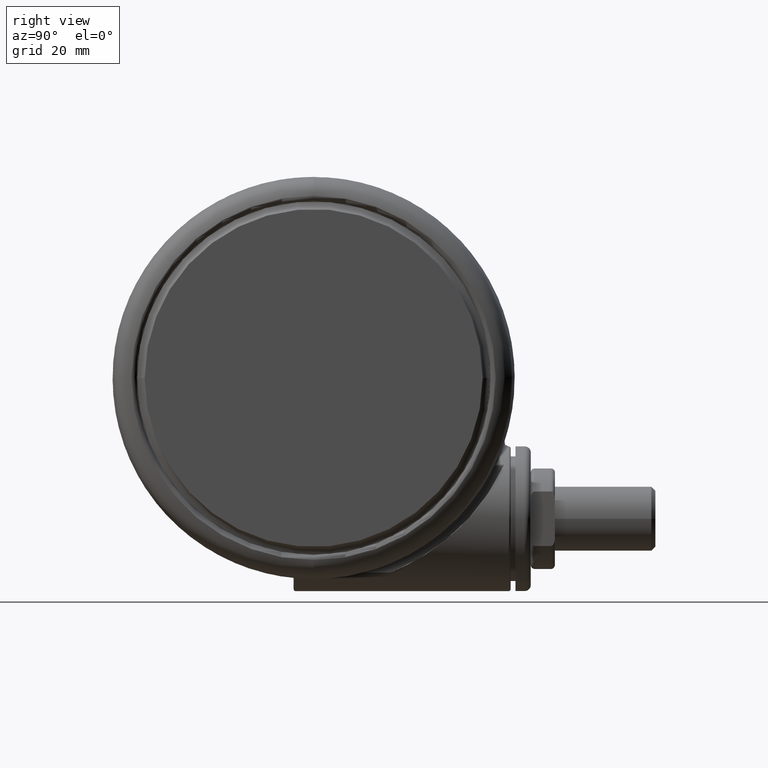
[diagram: clean part render]
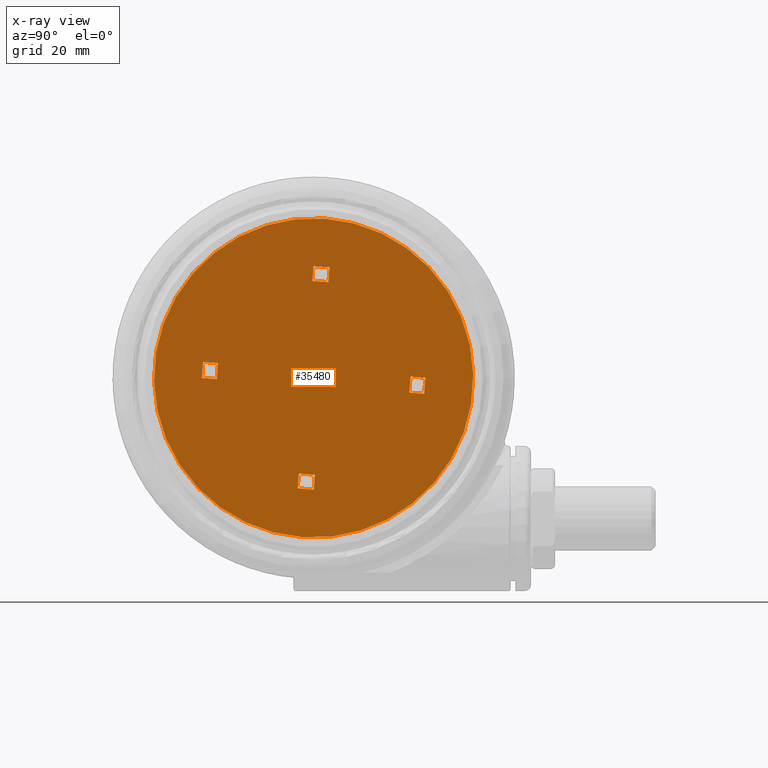
[diagram: x-ray — body ghosted, one internal face saturated and labeled with its STEP entity id]
A machine part, right view, then the same camera in x-ray: the body is ghosted and one INTERNAL B-rep face — a face not visible from any outside direction — is saturated and labeled: STEP entity #35480.
In plain terms, the highlighted planar face has unit normal (-1, 0, 0).
Its self-contained STEP definition (entity closure, byte-faithful):
#584 = FACE_BOUND ( 'NONE', #26364, .T. ) ;
#2398 = CARTESIAN_POINT ( 'NONE',  ( 27.49003547702652400, -3.948170439701663300, -63.39999999999995600 ) ) ;
#2595 = AXIS2_PLACEMENT_3D ( 'NONE', #76524, #40891, #5214 ) ;
#3108 = DIRECTION ( 'NONE',  ( 0.07051016129148821000, 0.9975110611690721800, 1.807003620809174600E-016 ) ) ;
#3343 = EDGE_CURVE ( 'NONE', #28112, #8440, #5698, .T. ) ;
#4098 = EDGE_LOOP ( 'NONE', ( #66324, #32962 ) ) ;
#4265 = EDGE_CURVE ( 'NONE', #49208, #15725, #28939, .T. ) ;
#4668 = LINE ( 'NONE', #47190, #50364 ) ;
#4781 = CARTESIAN_POINT ( 'NONE',  ( 3.687265398560212800, 23.79922829588536400, -63.39999999999995600 ) ) ;
#4909 = DIRECTION ( 'NONE',  ( 0.07051016129148471300, 0.9975110611690724000, 0.0000000000000000000 ) ) ;
#5214 = DIRECTION ( 'NONE',  ( 0.07051016129148471300, 0.9975110611690722900, 0.0000000000000000000 ) ) ;
#5646 = CARTESIAN_POINT ( 'NONE',  ( -3.948154184886180800, -27.49005292138972200, -63.39999999999995600 ) ) ;
#5676 = CARTESIAN_POINT ( 'NONE',  ( -0.1410209173567841800, -1.995038971927535700, -63.39999999999995600 ) ) ;
#5698 = LINE ( 'NONE', #11174, #51388 ) ;
#5863 = EDGE_CURVE ( 'NONE', #54701, #49208, #31441, .T. ) ;
#6778 = DIRECTION ( 'NONE',  ( -0.07051016129148471300, -0.9975110611690724000, -0.0000000000000000000 ) ) ;
#7157 = VERTEX_POINT ( 'NONE', #37127 ) ;
#7212 = CARTESIAN_POINT ( 'NONE',  ( 0.3027776565686123900, -24.08130264023009200, -63.39999999999995600 ) ) ;
#7563 = EDGE_CURVE ( 'NONE', #47280, #7157, #18411, .T. ) ;
#8440 = VERTEX_POINT ( 'NONE', #63762 ) ;
#9071 = CIRCLE ( 'NONE', #2595, 39.70000000000001000 ) ;
#9775 = EDGE_CURVE ( 'NONE', #73379, #54701, #28480, .T. ) ;
#10944 = CARTESIAN_POINT ( 'NONE',  ( -27.63105698915712300, 1.953114618184736500, -63.39999999999995600 ) ) ;
#11174 = CARTESIAN_POINT ( 'NONE',  ( -0.1410209173567835200, -1.995038971927535700, -63.39999999999995600 ) ) ;
#11186 = VECTOR ( 'NONE', #6778, 1000.000000000000100 ) ;
#11382 = EDGE_CURVE ( 'NONE', #56263, #28112, #50587, .T. ) ;
#12274 = CARTESIAN_POINT ( 'NONE',  ( 27.77207612219246300, 0.04187380497462775400, -63.39999999999995600 ) ) ;
#12685 = CARTESIAN_POINT ( 'NONE',  ( 40.39919738257362500, -2.855678381894521900, -63.39999999999995600 ) ) ;
#13254 = DIRECTION ( 'NONE',  ( 0.9975110611690721800, -0.07051016129148821000, -0.0000000000000000000 ) ) ;
#13335 = VERTEX_POINT ( 'NONE', #4781 ) ;
#14470 = VECTOR ( 'NONE', #4909, 1000.000000000000100 ) ;
#14901 = DIRECTION ( 'NONE',  ( -0.07051016129149517700, -0.9975110611690716200, 1.807003620809174600E-016 ) ) ;
#15185 = VECTOR ( 'NONE', #14901, 1000.000000000000100 ) ;
#15725 = VERTEX_POINT ( 'NONE', #35218 ) ;
#16086 = VECTOR ( 'NONE', #39900, 1000.000000000000100 ) ;
#16967 = LINE ( 'NONE', #7212, #18837 ) ;
#17205 = AXIS2_PLACEMENT_3D ( 'NONE', #12685, #47831, #24696 ) ;
#17315 = DIRECTION ( 'NONE',  ( 0.9975110611690716200, -0.07051016129149517700, 0.0000000000000000000 ) ) ;
#17747 = LINE ( 'NONE', #35253, #65257 ) ;
#18411 = CIRCLE ( 'NONE', #56382, 39.70000000000001000 ) ;
#18666 = PLANE ( 'NONE',  #17205 ) ;
#18837 = VECTOR ( 'NONE', #13254, 999.9999999999998900 ) ;
#18974 = EDGE_LOOP ( 'NONE', ( #60508, #38977, #73451, #37489 ) ) ;
#20650 = EDGE_LOOP ( 'NONE', ( #48170, #72729, #30719, #42493 ) ) ;
#22870 = DIRECTION ( 'NONE',  ( -0.9975110611690724000, 0.07051016129148471300, 1.807003620809174600E-016 ) ) ;
#24150 = DIRECTION ( 'NONE',  ( -0.07051016129148471300, -0.9975110611690724000, 0.0000000000000000000 ) ) ;
#24247 = VERTEX_POINT ( 'NONE', #5646 ) ;
#24696 = DIRECTION ( 'NONE',  ( 0.07051016129148471300, 0.9975110611690724000, 0.0000000000000000000 ) ) ;
#25239 = VECTOR ( 'NONE', #3108, 999.9999999999998900 ) ;
#26010 = LINE ( 'NONE', #32627, #43722 ) ;
#26364 = EDGE_LOOP ( 'NONE', ( #58385, #30450, #29304, #27332 ) ) ;
#27332 = ORIENTED_EDGE ( 'NONE', *, *, #75172, .F. ) ;
#28010 = VERTEX_POINT ( 'NONE', #42281 ) ;
#28112 = VERTEX_POINT ( 'NONE', #2398 ) ;
#28480 = LINE ( 'NONE', #10944, #14470 ) ;
#28878 = ORIENTED_EDGE ( 'NONE', *, *, #51849, .T. ) ;
#28939 = LINE ( 'NONE', #42524, #11186 ) ;
#29304 = ORIENTED_EDGE ( 'NONE', *, *, #4265, .T. ) ;
#29527 = CARTESIAN_POINT ( 'NONE',  ( 0.1410197278091547300, 1.995005272748754800, -63.39999999999995600 ) ) ;
#29731 = LINE ( 'NONE', #5676, #43685 ) ;
#29878 = EDGE_CURVE ( 'NONE', #32261, #46899, #46849, .T. ) ;
#30334 = EDGE_CURVE ( 'NONE', #33980, #59949, #16967, .T. ) ;
#30450 = ORIENTED_EDGE ( 'NONE', *, *, #5863, .T. ) ;
#30719 = ORIENTED_EDGE ( 'NONE', *, *, #30334, .T. ) ;
#30788 = VERTEX_POINT ( 'NONE', #38640 ) ;
#30878 = CARTESIAN_POINT ( 'NONE',  ( -5.947738144010394900E-007, -1.684958939041081300E-005, -63.39999999999995600 ) ) ;
#31331 = EDGE_CURVE ( 'NONE', #28010, #59949, #41029, .T. ) ;
#31441 = LINE ( 'NONE', #29527, #51028 ) ;
#32261 = VERTEX_POINT ( 'NONE', #38140 ) ;
#32296 = FACE_BOUND ( 'NONE', #18974, .T. ) ;
#32627 = CARTESIAN_POINT ( 'NONE',  ( -1.995022717111959200, 0.1410034729935856800, -63.39999999999995600 ) ) ;
#32875 = VECTOR ( 'NONE', #24150, 1000.000000000000100 ) ;
#32962 = ORIENTED_EDGE ( 'NONE', *, *, #33297, .T. ) ;
#33297 = EDGE_CURVE ( 'NONE', #7157, #47280, #9071, .T. ) ;
#33522 = ORIENTED_EDGE ( 'NONE', *, *, #37794, .T. ) ;
#33672 = CARTESIAN_POINT ( 'NONE',  ( 1.995021527564329500, -0.1410371721723804300, -63.39999999999995600 ) ) ;
#33980 = VERTEX_POINT ( 'NONE', #42377 ) ;
#34495 = LINE ( 'NONE', #36857, #48499 ) ;
#35218 = CARTESIAN_POINT ( 'NONE',  ( -24.08128638541452200, -0.3027951009319021500, -63.39999999999995600 ) ) ;
#35253 = CARTESIAN_POINT ( 'NONE',  ( 42.35232885034772500, 24.77537801248838500, -63.39999999999995600 ) ) ;
#35480 = ADVANCED_FACE ( 'NONE', ( #62113, #584, #63936, #32296, #46243 ), #18666, .F. ) ;
#36832 = DIRECTION ( 'NONE',  ( 0.07051016129148471300, 0.9975110611690722900, 0.0000000000000000000 ) ) ;
#36857 = CARTESIAN_POINT ( 'NONE',  ( 24.08128519586689700, 0.3027614017531213300, -63.39999999999995600 ) ) ;
#37127 = CARTESIAN_POINT ( 'NONE',  ( -2.799253998045753400, -39.60120597800156600, -63.39999999999995600 ) ) ;
#37489 = ORIENTED_EDGE ( 'NONE', *, *, #72686, .F. ) ;
#37794 = EDGE_CURVE ( 'NONE', #30788, #13335, #47746, .T. ) ;
#38140 = CARTESIAN_POINT ( 'NONE',  ( -0.04189124933754286000, 27.77205986737686800, -63.39999999999995600 ) ) ;
#38442 = ORIENTED_EDGE ( 'NONE', *, *, #29878, .F. ) ;
#38640 = CARTESIAN_POINT ( 'NONE',  ( 3.948152995338747300, 27.49001922221092900, -63.39999999999995600 ) ) ;
#38977 = ORIENTED_EDGE ( 'NONE', *, *, #3343, .T. ) ;
#39283 = CARTESIAN_POINT ( 'NONE',  ( -27.77207731174009100, -0.04190750415340857600, -63.39999999999995600 ) ) ;
#39900 = DIRECTION ( 'NONE',  ( -0.07051016129149517700, -0.9975110611690716200, 1.807003620809174600E-016 ) ) ;
#40891 = DIRECTION ( 'NONE',  ( -0.0000000000000000000, -0.0000000000000000000, 1.000000000000000000 ) ) ;
#41029 = LINE ( 'NONE', #74706, #25239 ) ;
#41354 = DIRECTION ( 'NONE',  ( 0.9975110611690724000, -0.07051016129148471300, 1.807003620809174600E-016 ) ) ;
#41535 = ORIENTED_EDGE ( 'NONE', *, *, #42406, .T. ) ;
#42281 = CARTESIAN_POINT ( 'NONE',  ( 0.04189005979010878400, -27.77209356655566100, -63.39999999999995600 ) ) ;
#42377 = CARTESIAN_POINT ( 'NONE',  ( -3.687266588107677800, -23.79926199506415300, -63.39999999999995600 ) ) ;
#42406 = EDGE_CURVE ( 'NONE', #13335, #46899, #4668, .T. ) ;
#42493 = ORIENTED_EDGE ( 'NONE', *, *, #31331, .F. ) ;
#42524 = CARTESIAN_POINT ( 'NONE',  ( -24.08128638541452200, -0.3027951009319021500, -63.39999999999995600 ) ) ;
#43315 = EDGE_CURVE ( 'NONE', #24247, #33980, #26010, .T. ) ;
#43685 = VECTOR ( 'NONE', #41354, 1000.000000000000100 ) ;
#43722 = VECTOR ( 'NONE', #68272, 999.9999999999998900 ) ;
#45477 = CARTESIAN_POINT ( 'NONE',  ( 38.44606591479949700, -30.48673477627783200, -63.39999999999995600 ) ) ;
#45641 = CARTESIAN_POINT ( 'NONE',  ( 0.3027776565686123900, -24.08130264023009200, -63.39999999999995600 ) ) ;
#46243 = FACE_OUTER_BOUND ( 'NONE', #4098, .T. ) ;
#46849 = LINE ( 'NONE', #50590, #15185 ) ;
#46899 = VERTEX_POINT ( 'NONE', #52434 ) ;
#47190 = CARTESIAN_POINT ( 'NONE',  ( -0.3027788461160768100, 24.08126894105130200, -63.39999999999995600 ) ) ;
#47280 = VERTEX_POINT ( 'NONE', #51086 ) ;
#47746 = LINE ( 'NONE', #33672, #16086 ) ;
#47831 = DIRECTION ( 'NONE',  ( 0.0000000000000000000, 0.0000000000000000000, -1.000000000000000000 ) ) ;
#48170 = ORIENTED_EDGE ( 'NONE', *, *, #51742, .T. ) ;
#48499 = VECTOR ( 'NONE', #48852, 1000.000000000000100 ) ;
#48852 = DIRECTION ( 'NONE',  ( 0.07051016129148471300, 0.9975110611690724000, -0.0000000000000000000 ) ) ;
#49208 = VERTEX_POINT ( 'NONE', #74164 ) ;
#50364 = VECTOR ( 'NONE', #52949, 1000.000000000000100 ) ;
#50587 = LINE ( 'NONE', #59811, #32875 ) ;
#50590 = CARTESIAN_POINT ( 'NONE',  ( -1.995022717111958300, 0.1410034729936002800, -63.39999999999995600 ) ) ;
#51028 = VECTOR ( 'NONE', #71086, 1000.000000000000100 ) ;
#51086 = CARTESIAN_POINT ( 'NONE',  ( 2.799252808498129000, 39.60117227882278700, -63.39999999999995600 ) ) ;
#51388 = VECTOR ( 'NONE', #22870, 1000.000000000000100 ) ;
#51463 = DIRECTION ( 'NONE',  ( -0.9975110611690721800, 0.07051016129148821000, 0.0000000000000000000 ) ) ;
#51742 = EDGE_CURVE ( 'NONE', #28010, #24247, #74559, .T. ) ;
#51849 = EDGE_CURVE ( 'NONE', #32261, #30788, #17747, .T. ) ;
#52434 = CARTESIAN_POINT ( 'NONE',  ( -0.3027788461160768100, 24.08126894105130200, -63.39999999999995600 ) ) ;
#52949 = DIRECTION ( 'NONE',  ( -0.9975110611690716200, 0.07051016129149517700, -0.0000000000000000000 ) ) ;
#54701 = VERTEX_POINT ( 'NONE', #58613 ) ;
#56263 = VERTEX_POINT ( 'NONE', #12274 ) ;
#56382 = AXIS2_PLACEMENT_3D ( 'NONE', #30878, #72470, #36832 ) ;
#56923 = VECTOR ( 'NONE', #51463, 999.9999999999998900 ) ;
#58385 = ORIENTED_EDGE ( 'NONE', *, *, #9775, .T. ) ;
#58475 = CARTESIAN_POINT ( 'NONE',  ( 0.1410197278091553700, 1.995005272748754800, -63.39999999999995600 ) ) ;
#58613 = CARTESIAN_POINT ( 'NONE',  ( -27.49003666657415200, 3.948136740522882400, -63.39999999999995600 ) ) ;
#58880 = VERTEX_POINT ( 'NONE', #62485 ) ;
#59811 = CARTESIAN_POINT ( 'NONE',  ( 27.63105579960949500, -1.953148317363517400, -63.39999999999995600 ) ) ;
#59949 = VERTEX_POINT ( 'NONE', #45641 ) ;
#60177 = LINE ( 'NONE', #58475, #62042 ) ;
#60508 = ORIENTED_EDGE ( 'NONE', *, *, #11382, .T. ) ;
#62042 = VECTOR ( 'NONE', #64442, 1000.000000000000100 ) ;
#62113 = FACE_BOUND ( 'NONE', #69130, .T. ) ;
#62485 = CARTESIAN_POINT ( 'NONE',  ( 24.08128519586689700, 0.3027614017531213300, -63.39999999999995600 ) ) ;
#63762 = CARTESIAN_POINT ( 'NONE',  ( 23.79924455070095800, -3.687282842923168800, -63.39999999999995600 ) ) ;
#63936 = FACE_BOUND ( 'NONE', #20650, .T. ) ;
#64442 = DIRECTION ( 'NONE',  ( -0.9975110611690724000, 0.07051016129148471300, 1.807003620809174600E-016 ) ) ;
#65257 = VECTOR ( 'NONE', #17315, 1000.000000000000100 ) ;
#66324 = ORIENTED_EDGE ( 'NONE', *, *, #7563, .T. ) ;
#68272 = DIRECTION ( 'NONE',  ( 0.07051016129148821000, 0.9975110611690721800, 1.807003620809174600E-016 ) ) ;
#69130 = EDGE_LOOP ( 'NONE', ( #28878, #33522, #41535, #38442 ) ) ;
#69711 = EDGE_CURVE ( 'NONE', #8440, #58880, #34495, .T. ) ;
#71086 = DIRECTION ( 'NONE',  ( 0.9975110611690724000, -0.07051016129148471300, 1.807003620809174600E-016 ) ) ;
#72470 = DIRECTION ( 'NONE',  ( -0.0000000000000000000, -0.0000000000000000000, 1.000000000000000000 ) ) ;
#72686 = EDGE_CURVE ( 'NONE', #56263, #58880, #60177, .T. ) ;
#72729 = ORIENTED_EDGE ( 'NONE', *, *, #43315, .T. ) ;
#73379 = VERTEX_POINT ( 'NONE', #39283 ) ;
#73451 = ORIENTED_EDGE ( 'NONE', *, *, #69711, .T. ) ;
#74164 = CARTESIAN_POINT ( 'NONE',  ( -23.79924574024858300, 3.687249143744387900, -63.39999999999995600 ) ) ;
#74559 = LINE ( 'NONE', #45477, #56923 ) ;
#74706 = CARTESIAN_POINT ( 'NONE',  ( 1.995021527564330400, -0.1410371721723671600, -63.39999999999995600 ) ) ;
#75172 = EDGE_CURVE ( 'NONE', #73379, #15725, #29731, .T. ) ;
#76524 = CARTESIAN_POINT ( 'NONE',  ( -5.947738144010394900E-007, -1.684958939041081300E-005, -63.39999999999995600 ) ) ;